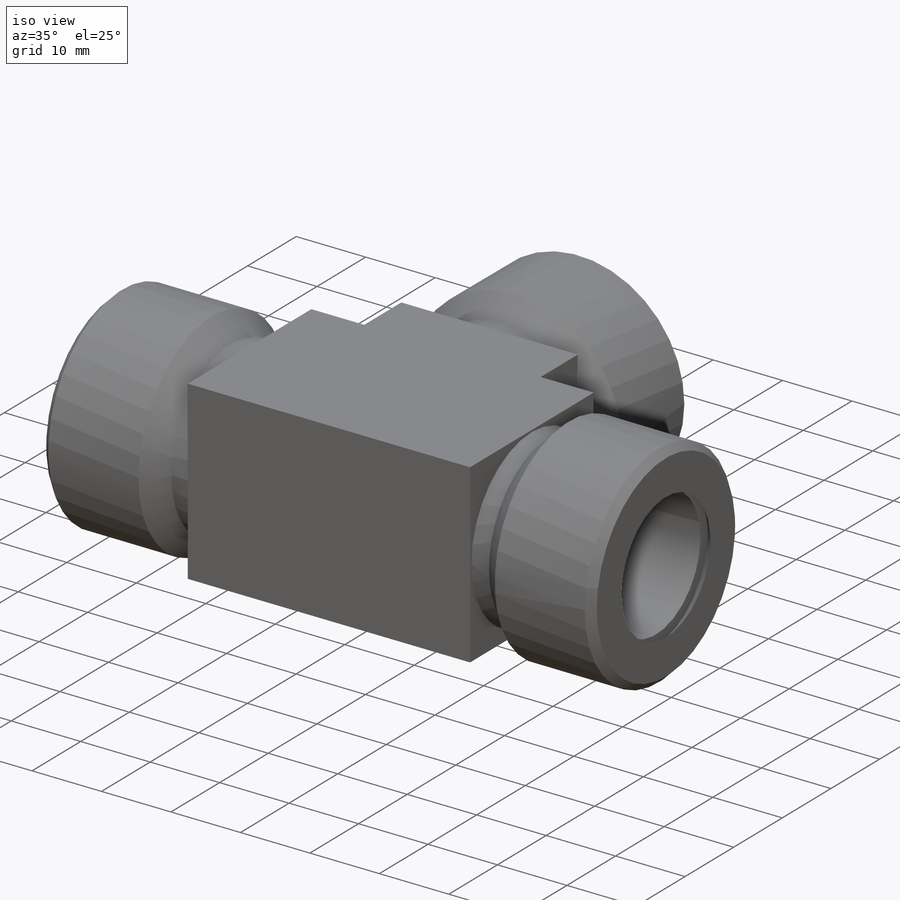
[diagram: iso view]
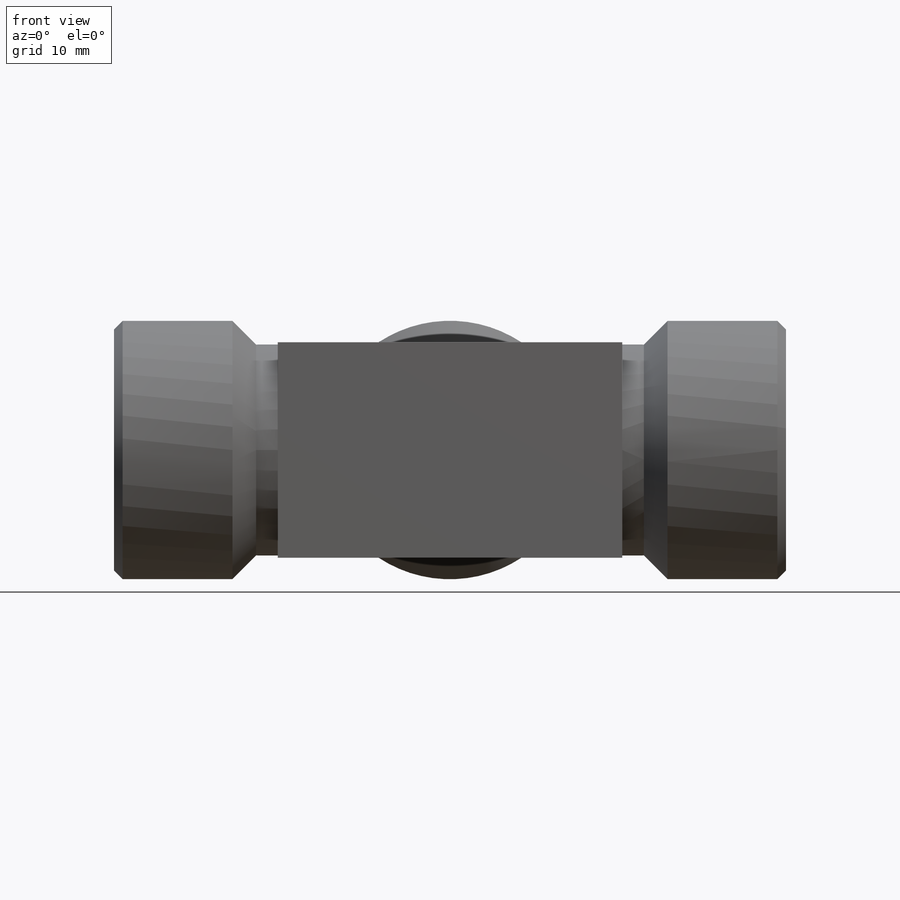
[diagram: front view]
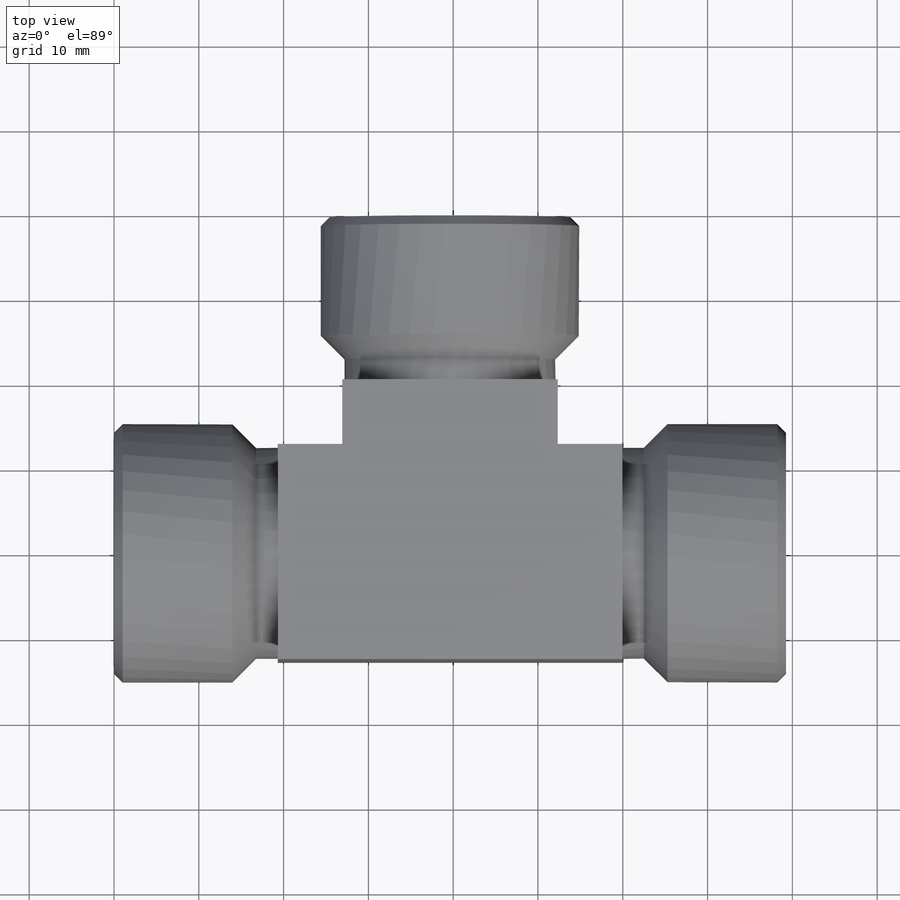
[diagram: top view]
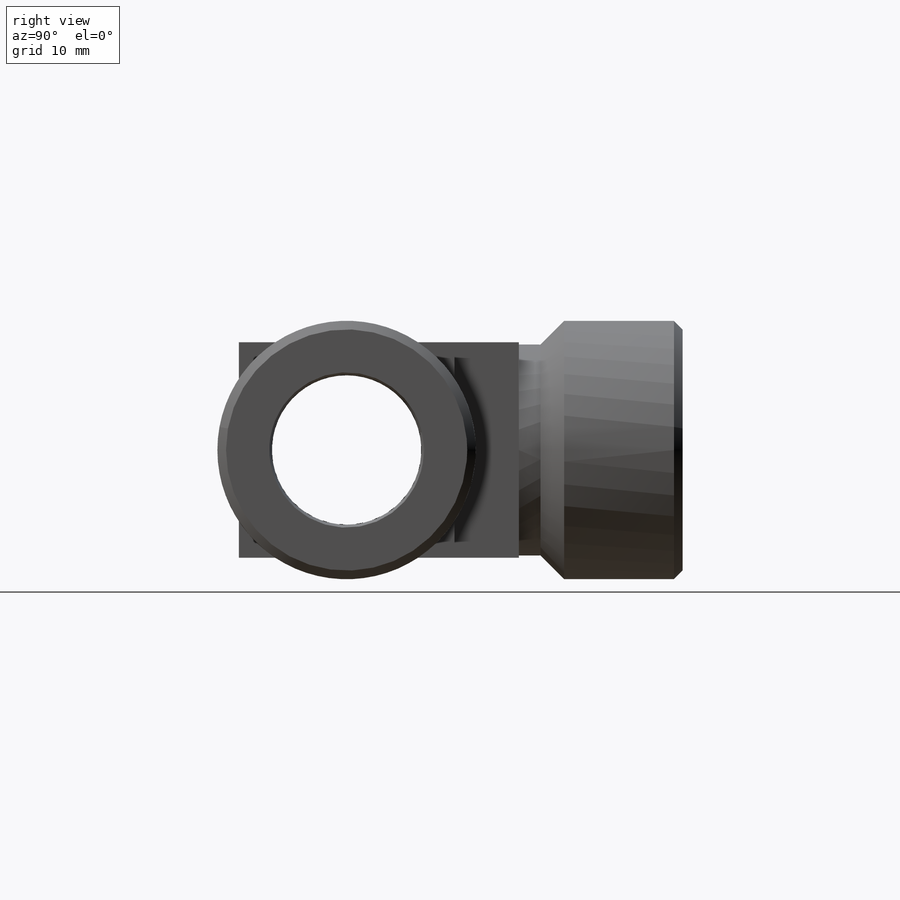
[diagram: right view]
SOLIDWORKS PART (.sldprt)
format: sldprt  version: not decoded by parser v0  size: 407,040 bytes
history: native  units: mm
features: sketch x21, extrude x10, cut_extrude x9, plane x3, chamfer x3, material x1, hole x1 (+11 scaffold rows collapsed)
feature tree (59):
  scaffold x11  (default folders/planes/origin — collapsed)
  material  "Material <not specified>"
  plane  "Plane1"  Offset=12.7mm
  sketch  "Sketch1"
  extrude  "Boss-Extrude1"  Depth=25.4mm
  sketch  "Sketch2"
  cut_extrude  "Cut-Extrude1"  Depth=25.4mm
  sketch  "Sketch3"
  cut_extrude  "Cut-Extrude2"  Depth=25.4mm
  sketch  "Sketch4"
  extrude  "Boss-Extrude2"  Depth=2.54mm
  sketch  "Sketch5"
  extrude  "Boss-Extrude3"  Depth=2.794mm
  sketch  "Sketch6"
  extrude  "Boss-Extrude4"  Depth=13.97mm
  sketch  "Sketch7"
  extrude  "Boss-Extrude5"  Depth=2.54mm
  sketch  "Sketch8"
  extrude  "Boss-Extrude6"  Depth=2.794mm
  sketch  "Sketch9"
  extrude  "Boss-Extrude7"  Depth=13.97mm
  sketch  "Sketch10"
  extrude  "Boss-Extrude8"  Depth=2.54mm
  sketch  "Sketch11"
  extrude  "Boss-Extrude9"  Depth=2.794mm
  sketch  "Sketch12"
  extrude  "Boss-Extrude10"  Depth=13.97mm
  plane  "Plane2"
  sketch  "Sketch13"
  cut_extrude  "Cut-Extrude3"  Depth=52.10556mm
  plane  "Plane3"
  sketch  "Sketch14"
  cut_extrude  "Cut-Extrude4"  Depth=26.05278mm
  sketch  "Sketch15"
  cut_extrude  "Cut-Extrude5"  Depth=1.451356mm
  sketch  "Sketch16"
  cut_extrude  "Cut-Extrude6"  Depth=12.119864mm
  sketch  "Sketch17"
  cut_extrude  "Cut-Extrude7"  Depth=1.451356mm
  sketch  "Sketch18"
  cut_extrude  "Cut-Extrude8"  Depth=12.119864mm
  hole  "Hole1"  Diameter=21.223478mm Depth=1.451356mm
  sketch  "Sketch20"
  sketch  "Sketch19"  dims[Minor Diameter=~21.223478mm Depth=~1.451356mm Major Diameter=~18.320766mm]
  sketch  "Sketch21"
  cut_extrude  "Cut-Extrude9"  Depth=12.119864mm
  chamfer  "Chamfer1"  Distance=1.016mm Angle=45deg
  chamfer  "Chamfer2"  Distance=1.016mm Angle=45deg
  chamfer  "Chamfer3"  Distance=1.016mm Angle=45deg
decode coverage: 24 of 44 modeling features carry decoded parameters
note: ~ marks probable driven/reference dimensions
note: suppression state not decoded; provenance and decode notes live in map.json
